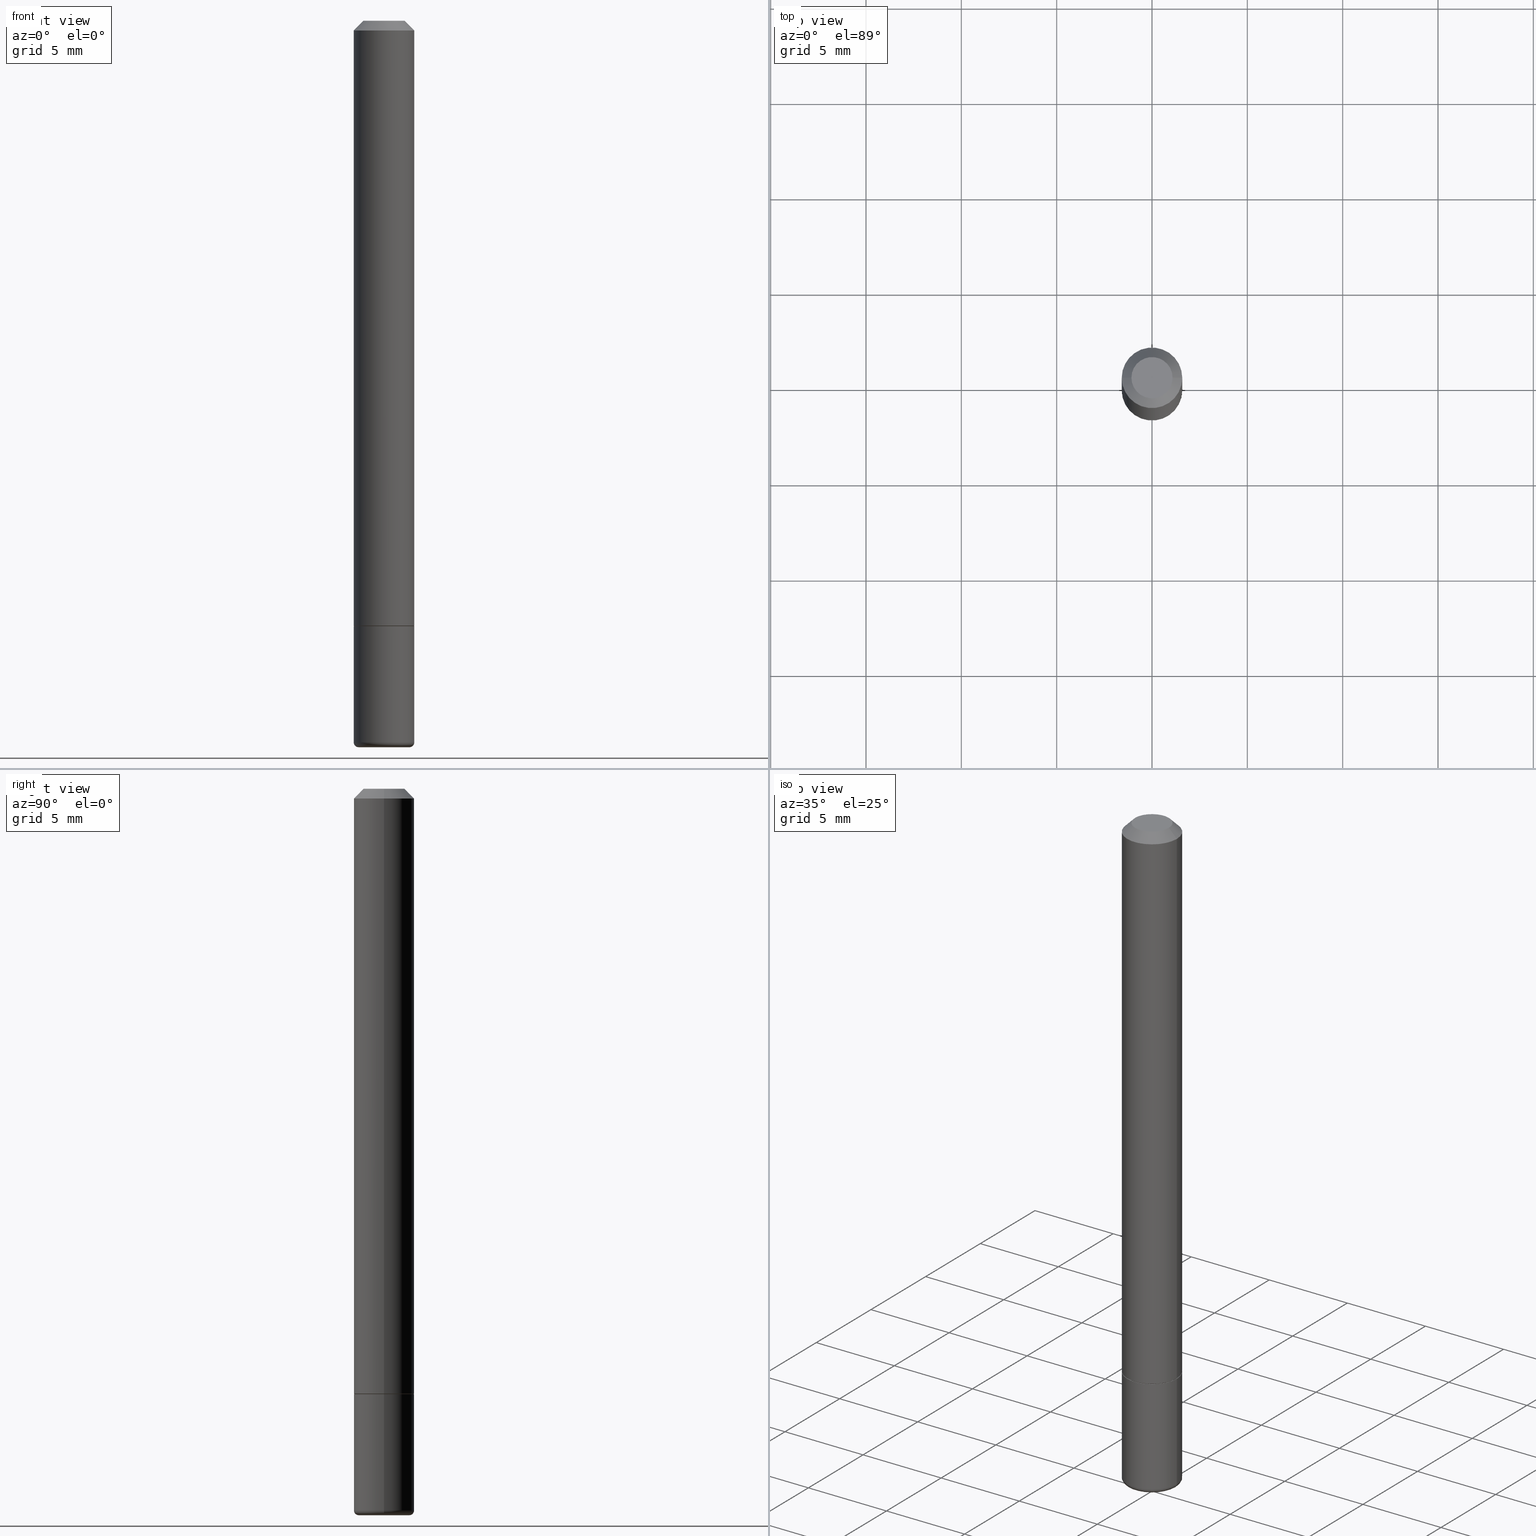
[diagram: canonical four-view strip — front | top / right | iso, engineering-drawing reading convention]
A machine part, canonical four-view strip (front | top / right | iso — engineering-drawing reading convention). The complete STEP part file that produces these views, byte-faithful:
ISO-10303-21;
HEADER;
FILE_DESCRIPTION (( 'STEP AP203' ),
    '1' );
FILE_NAME ('32606.STEP',
    '2022-04-26T19:39:46',
    ( '' ),
    ( '' ),
    'SwSTEP 2.0',
    'SolidWorks 2022',
    '' );
FILE_SCHEMA (( 'CONFIG_CONTROL_DESIGN' ));
ENDSEC;

DATA;
#1 = ADVANCED_FACE ( 'NONE', ( #101 ), #318, .T. ) ;
#2 = LINE ( 'NONE', #68, #196 ) ;
#3 = PLANE ( 'NONE',  #114 ) ;
#4 = DIRECTION ( 'NONE',  ( -2.445468806185136597E-29, 3.491481338843145583E-15, 1.000000000000000000 ) ) ;
#5 = VECTOR ( 'NONE', #238, 39.37007874015748143 ) ;
#6 = CARTESIAN_POINT ( 'NONE',  ( 3.643748521215853910E-29, -5.202307194876288105E-15, -1.490000000000000213 ) ) ;
#7 = CC_DESIGN_PERSON_AND_ORGANIZATION_ASSIGNMENT ( #294, #215, ( #150 ) ) ;
#8 = CARTESIAN_POINT ( 'NONE',  ( 3.056836007731421306E-29, -4.364351673553932471E-15, -1.250000000000000000 ) ) ;
#9 = CARTESIAN_POINT ( 'NONE',  ( 4.364351673554222871E-16, 0.06249999999999565625, -1.250000000000000222 ) ) ;
#10 = DIRECTION ( 'NONE',  ( -2.445468806185136597E-29, 3.491481338843145583E-15, 1.000000000000000000 ) ) ;
#11 = ORIENTED_EDGE ( 'NONE', *, *, #371, .T. ) ;
#12 = DATE_AND_TIME ( #314, #227 ) ;
#13 = AXIS2_PLACEMENT_3D ( 'NONE', #45, #40, #234 ) ;
#14 = DIRECTION ( 'NONE',  ( -2.445468806185136597E-29, 3.491481338843145583E-15, 1.000000000000000000 ) ) ;
#15 = VERTEX_POINT ( 'NONE', #411 ) ;
#16 = AXIS2_PLACEMENT_3D ( 'NONE', #85, #352, #354 ) ;
#17 = COORDINATED_UNIVERSAL_TIME_OFFSET ( 5, 0, .BEHIND. ) ;
#18 = EDGE_CURVE ( 'NONE', #395, #50, #361, .T. ) ;
#19 = DIRECTION ( 'NONE',  ( 1.000000000000000000, -6.982962677686267499E-15, 4.876176775795935793E-29 ) ) ;
#20 = ORIENTED_EDGE ( 'NONE', *, *, #141, .F. ) ;
#21 = CC_DESIGN_PERSON_AND_ORGANIZATION_ASSIGNMENT ( #180, #24, ( #325 ) ) ;
#22 = CARTESIAN_POINT ( 'NONE',  ( -0.06150000000000001299, -3.927367891061469286E-15, -1.249999999999999778 ) ) ;
#23 = ORIENTED_EDGE ( 'NONE', *, *, #429, .T. ) ;
#24 = PERSON_AND_ORGANIZATION_ROLE ( 'design_owner' ) ;
#25 = AXIS2_PLACEMENT_3D ( 'NONE', #367, #276, #208 ) ;
#26 = AXIS2_PLACEMENT_3D ( 'NONE', #181, #320, #19 ) ;
#27 = EDGE_CURVE ( 'NONE', #253, #313, #28, .T. ) ;
#28 = CIRCLE ( 'NONE', #126, 0.05232547593562723171 ) ;
#29 = EDGE_CURVE ( 'NONE', #313, #253, #434, .T. ) ;
#30 = UNCERTAINTY_MEASURE_WITH_UNIT (LENGTH_MEASURE( 1.000000000000000082E-05 ), #430, 'distance_accuracy_value', 'NONE');
#31 = MANIFOLD_SOLID_BREP ( 'Body-Move/Copy2[1]', #139 ) ;
#32 = EDGE_LOOP ( 'NONE', ( #249, #217, #117 ) ) ;
#33 = ORIENTED_EDGE ( 'NONE', *, *, #343, .T. ) ;
#34 = AXIS2_PLACEMENT_3D ( 'NONE', #379, #80, #386 ) ;
#35 = LINE ( 'NONE', #104, #397 ) ;
#36 = VECTOR ( 'NONE', #46, 39.37007874015748143 ) ;
#37 = ORIENTED_EDGE ( 'NONE', *, *, #18, .T. ) ;
#38 = CARTESIAN_POINT ( 'NONE',  ( 4.890937612370288923E-31, -6.982962677686312563E-17, -0.02000000000000006287 ) ) ;
#39 = CARTESIAN_POINT ( 'NONE',  ( 0.06249999999999993755, -4.364351673553912750E-16, 3.047610484872456718E-30 ) ) ;
#40 = DIRECTION ( 'NONE',  ( 7.105427357601001859E-15, 1.000000000000000000, -3.491481338843145583E-15 ) ) ;
#41 = CARTESIAN_POINT ( 'NONE',  ( 3.668199484710263962E-29, -5.237216690569524575E-15, -1.499998476951563742 ) ) ;
#42 = DIRECTION ( 'NONE',  ( -2.445468806185136597E-29, 3.491481338843145583E-15, 1.000000000000000000 ) ) ;
#43 = DIRECTION ( 'NONE',  ( 1.000000000000000000, -6.982962677686267499E-15, 4.876176775795935793E-29 ) ) ;
#44 = AXIS2_PLACEMENT_3D ( 'NONE', #6, #311, #210 ) ;
#45 = CARTESIAN_POINT ( 'NONE',  ( -0.05250000000000005357, -4.829272258602234782E-15, -1.490000000000000213 ) ) ;
#46 = DIRECTION ( 'NONE',  ( -0.7071067811866441621, 7.493145998870704414E-15, 0.7071067811864508723 ) ) ;
#47 = ORIENTED_EDGE ( 'NONE', *, *, #76, .F. ) ;
#48 = COORDINATED_UNIVERSAL_TIME_OFFSET ( 5, 0, .BEHIND. ) ;
#49 = FACE_OUTER_BOUND ( 'NONE', #400, .T. ) ;
#50 = VERTEX_POINT ( 'NONE', #209 ) ;
#51 = AXIS2_PLACEMENT_3D ( 'NONE', #372, #440, #268 ) ;
#52 = CARTESIAN_POINT ( 'NONE',  ( 0.04249999999999995448, -3.950909582714366952E-16, -3.841661241090128254E-17 ) ) ;
#53 = VERTEX_POINT ( 'NONE', #173 ) ;
#54 = LOCAL_TIME ( 15, 39, 46.00000000000000000, #291 ) ;
#55 = EDGE_CURVE ( 'NONE', #53, #198, #271, .T. ) ;
#56 = APPLICATION_PROTOCOL_DEFINITION ( 'international standard', 'config_control_design', 1994, #115 ) ;
#57 = CARTESIAN_POINT ( 'NONE',  ( 0.06150000000000001299, -4.793803878231636549E-15, -1.249999999999999778 ) ) ;
#58 = ORIENTED_EDGE ( 'NONE', *, *, #128, .T. ) ;
#59 = PERSON_AND_ORGANIZATION ( #432, #166 ) ;
#60 = CC_DESIGN_PERSON_AND_ORGANIZATION_ASSIGNMENT ( #59, #218, ( #381 ) ) ;
#61 = AXIS2_PLACEMENT_3D ( 'NONE', #310, #377, #43 ) ;
#62 = LOCAL_TIME ( 15, 39, 46.00000000000000000, #424 ) ;
#63 = EDGE_CURVE ( 'NONE', #366, #313, #278, .T. ) ;
#64 = EDGE_CURVE ( 'NONE', #15, #426, #111, .T. ) ;
#65 = AXIS2_PLACEMENT_3D ( 'NONE', #236, #75, #365 ) ;
#66 = VERTEX_POINT ( 'NONE', #240 ) ;
#67 = ORIENTED_EDGE ( 'NONE', *, *, #141, .T. ) ;
#68 = CARTESIAN_POINT ( 'NONE',  ( -0.06249999999999993755, 4.440892098500621724E-16, -3.074334431409313311E-30 ) ) ;
#69 = FACE_OUTER_BOUND ( 'NONE', #229, .T. ) ;
#70 = CIRCLE ( 'NONE', #13, 0.009999999999999807654 ) ;
#71 = DIRECTION ( 'NONE',  ( -2.445468806185136597E-29, 3.491481338843145583E-15, 1.000000000000000000 ) ) ;
#72 = FACE_OUTER_BOUND ( 'NONE', #156, .T. ) ;
#73 = CARTESIAN_POINT ( 'NONE',  ( 0.05250000000000005357, -5.568912735454817265E-15, -1.490000000000000213 ) ) ;
#74 = FACE_OUTER_BOUND ( 'NONE', #419, .T. ) ;
#75 = DIRECTION ( 'NONE',  ( -2.445468806185136597E-29, 3.491481338843145583E-15, 1.000000000000000000 ) ) ;
#76 = EDGE_CURVE ( 'NONE', #15, #66, #401, .T. ) ;
#77 = CARTESIAN_POINT ( 'NONE',  ( 3.665965929030929222E-29, -5.234027765013026441E-15, -1.499085132371708262 ) ) ;
#78 = DIRECTION ( 'NONE',  ( -6.982962677686266711E-15, -1.000000000000000000, 3.491481338843145583E-15 ) ) ;
#79 = AXIS2_PLACEMENT_3D ( 'NONE', #190, #323, #178 ) ;
#80 = DIRECTION ( 'NONE',  ( -2.445468806185136597E-29, 3.491481338843145583E-15, 1.000000000000000000 ) ) ;
#81 = VERTEX_POINT ( 'NONE', #335 ) ;
#82 = APPROVAL_STATUS ( 'not_yet_approved' ) ;
#83 = LINE ( 'NONE', #22, #36 ) ;
#84 = EDGE_LOOP ( 'NONE', ( #191, #438, #182, #336 ) ) ;
#85 = CARTESIAN_POINT ( 'NONE',  ( 3.054390538925235704E-29, -4.360860192215088675E-15, -1.248999999999999888 ) ) ;
#86 = ORIENTED_EDGE ( 'NONE', *, *, #228, .F. ) ;
#87 = MECHANICAL_CONTEXT ( 'NONE', #200, 'mechanical' ) ;
#88 = TOROIDAL_SURFACE ( 'NONE', #44, 0.05250000000000005357, 0.009999999999999805919 ) ;
#89 =( LENGTH_UNIT ( ) NAMED_UNIT ( * ) SI_UNIT ( $, .METRE. ) );
#90 = EDGE_LOOP ( 'NONE', ( #37, #152, #269, #168 ) ) ;
#91 = PERSON_AND_ORGANIZATION ( #432, #166 ) ;
#92 = CC_DESIGN_SECURITY_CLASSIFICATION ( #150, ( #381 ) ) ;
#93 = ORIENTED_EDGE ( 'NONE', *, *, #107, .T. ) ;
#94 = PERSON_AND_ORGANIZATION ( #432, #166 ) ;
#95 = CIRCLE ( 'NONE', #184, 0.009999999999999807654 ) ;
#96 = ADVANCED_FACE ( 'NONE', ( #134 ), #275, .T. ) ;
#97 = ORIENTED_EDGE ( 'NONE', *, *, #128, .F. ) ;
#98 = AXIS2_PLACEMENT_3D ( 'NONE', #368, #140, #176 ) ;
#99 = DIRECTION ( 'NONE',  ( 1.000000000000000000, -6.982962677686268288E-15, 0.000000000000000000 ) ) ;
#100 = DIRECTION ( 'NONE',  ( -2.445468806185136597E-29, 3.491481338843145583E-15, 1.000000000000000000 ) ) ;
#101 = FACE_OUTER_BOUND ( 'NONE', #281, .T. ) ;
#102 = CARTESIAN_POINT ( 'NONE',  ( -0.06250000000000002776, -4.339240224365047278E-15, -1.250000000000000000 ) ) ;
#103 = VECTOR ( 'NONE', #339, 39.37007874015748143 ) ;
#104 = CARTESIAN_POINT ( 'NONE',  ( -0.06249999999999995143, 3.666055405785281740E-16, -0.02000000000000006287 ) ) ;
#105 = CIRCLE ( 'NONE', #185, 0.06250000000000008327 ) ;
#106 = CARTESIAN_POINT ( 'NONE',  ( 3.056836007731420185E-29, -4.364351673553931682E-15, -1.249999999999999778 ) ) ;
#107 = EDGE_CURVE ( 'NONE', #253, #15, #95, .T. ) ;
#108 = DIRECTION ( 'NONE',  ( -2.445468806185136597E-29, 3.491481338843145583E-15, 1.000000000000000000 ) ) ;
#109 = CARTESIAN_POINT ( 'NONE',  ( 4.890937612370288923E-31, -6.982962677686312563E-17, -0.02000000000000006287 ) ) ;
#110 = EDGE_CURVE ( 'NONE', #380, #198, #35, .T. ) ;
#111 = LINE ( 'NONE', #39, #5 ) ;
#112 = DIRECTION ( 'NONE',  ( 2.438088387897960049E-29, -3.491481338843145188E-15, -1.000000000000000000 ) ) ;
#113 = CARTESIAN_POINT ( 'NONE',  ( 0.000000000000000000, 0.000000000000000000, 0.000000000000000000 ) ) ;
#114 = AXIS2_PLACEMENT_3D ( 'NONE', #213, #348, #169 ) ;
#115 = APPLICATION_CONTEXT ( 'configuration controlled 3d designs of mechanical parts and assemblies' ) ;
#116 = CARTESIAN_POINT ( 'NONE',  ( 3.056836007731421306E-29, -4.364351673553932471E-15, -1.250000000000000000 ) ) ;
#117 = ORIENTED_EDGE ( 'NONE', *, *, #27, .F. ) ;
#118 = LINE ( 'NONE', #57, #161 ) ;
#119 = ORIENTED_EDGE ( 'NONE', *, *, #64, .T. ) ;
#120 = ORIENTED_EDGE ( 'NONE', *, *, #415, .T. ) ;
#121 = APPROVAL_DATE_TIME ( #192, #223 ) ;
#122 = AXIS2_PLACEMENT_3D ( 'NONE', #171, #42, #164 ) ;
#123 = CARTESIAN_POINT ( 'NONE',  ( 0.000000000000000000, 0.000000000000000000, 0.000000000000000000 ) ) ;
#124 = ORIENTED_EDGE ( 'NONE', *, *, #29, .F. ) ;
#125 = EDGE_CURVE ( 'NONE', #390, #380, #159, .T. ) ;
#126 = AXIS2_PLACEMENT_3D ( 'NONE', #41, #199, #375 ) ;
#127 = CC_DESIGN_APPROVAL ( #274, ( #150 ) ) ;
#128 = EDGE_CURVE ( 'NONE', #66, #214, #2, .T. ) ;
#129 = ORIENTED_EDGE ( 'NONE', *, *, #63, .F. ) ;
#130 = ORIENTED_EDGE ( 'NONE', *, *, #359, .F. ) ;
#131 = AXIS2_PLACEMENT_3D ( 'NONE', #142, #301, #412 ) ;
#132 = CIRCLE ( 'NONE', #203, 0.06250000000000001388 ) ;
#133 = DIRECTION ( 'NONE',  ( 2.445468806185136597E-29, -3.491481338843145583E-15, -1.000000000000000000 ) ) ;
#134 = FACE_OUTER_BOUND ( 'NONE', #246, .T. ) ;
#135 = FACE_OUTER_BOUND ( 'NONE', #266, .T. ) ;
#136 = DIRECTION ( 'NONE',  ( 1.000000000000000000, -6.982962677686268288E-15, 0.000000000000000000 ) ) ;
#137 = ADVANCED_FACE ( 'NONE', ( #167 ), #302, .F. ) ;
#138 = DIRECTION ( 'NONE',  ( -2.445468806185136597E-29, 3.491481338843145583E-15, 1.000000000000000000 ) ) ;
#139 = CLOSED_SHELL ( 'NONE', ( #96, #197, #288, #251, #296, #427, #189 ) ) ;
#140 = DIRECTION ( 'NONE',  ( -2.445468806185136597E-29, 3.491481338843145583E-15, 1.000000000000000000 ) ) ;
#141 = EDGE_CURVE ( 'NONE', #66, #15, #337, .T. ) ;
#142 = CARTESIAN_POINT ( 'NONE',  ( 4.890937612370288923E-31, -6.982962677686312563E-17, -0.02000000000000006287 ) ) ;
#143 = DIRECTION ( 'NONE',  ( 1.000000000000000000, -6.982962677686273021E-15, 0.000000000000000000 ) ) ;
#144 = DIRECTION ( 'NONE',  ( 0.9998476951563914916, -6.920387862090534269E-15, -0.01745240643726872487 ) ) ;
#145 = APPROVAL_STATUS ( 'not_yet_approved' ) ;
#146 = CARTESIAN_POINT ( 'NONE',  ( 0.000000000000000000, 0.000000000000000000, 0.000000000000000000 ) ) ;
#147 = ORIENTED_EDGE ( 'NONE', *, *, #429, .F. ) ;
#148 = APPROVAL_DATE_TIME ( #12, #274 ) ;
#149 = CONICAL_SURFACE ( 'NONE', #175, 0.06249999999999995143, 0.7853981633974473908 ) ;
#150 = SECURITY_CLASSIFICATION ( '', '', #326 ) ;
#151 = CARTESIAN_POINT ( 'NONE',  ( -0.04249999999999995448, 3.316907271900970672E-16, -3.841661241090589861E-17 ) ) ;
#152 = ORIENTED_EDGE ( 'NONE', *, *, #359, .T. ) ;
#153 = APPROVAL_ROLE ( '' ) ;
#154 = ORIENTED_EDGE ( 'NONE', *, *, #55, .T. ) ;
#155 = DIRECTION ( 'NONE',  ( -2.445468806185136877E-29, 3.491481338843145188E-15, 1.000000000000000000 ) ) ;
#156 = EDGE_LOOP ( 'NONE', ( #264, #357, #431, #224 ) ) ;
#157 = EDGE_CURVE ( 'NONE', #214, #426, #402, .T. ) ;
#158 = COORDINATED_UNIVERSAL_TIME_OFFSET ( 5, 0, .BEHIND. ) ;
#159 = CIRCLE ( 'NONE', #65, 0.04249999999999995448 ) ;
#160 = AXIS2_PLACEMENT_3D ( 'NONE', #38, #272, #410 ) ;
#161 = VECTOR ( 'NONE', #418, 39.37007874015748143 ) ;
#162 = ADVANCED_BREP_SHAPE_REPRESENTATION ( '32606', ( #31, #331, #300 ), #435 ) ;
#163 = VERTEX_POINT ( 'NONE', #174 ) ;
#164 = DIRECTION ( 'NONE',  ( 1.000000000000000000, -6.982962677686262766E-15, 4.883557194083111219E-29 ) ) ;
#165 = AXIS2_PLACEMENT_3D ( 'NONE', #201, #138, #205 ) ;
#166 = ORGANIZATION ( 'UNSPECIFIED', 'UNSPECIFIED', '' ) ;
#167 = FACE_OUTER_BOUND ( 'NONE', #262, .T. ) ;
#168 = ORIENTED_EDGE ( 'NONE', *, *, #343, .F. ) ;
#169 = DIRECTION ( 'NONE',  ( -1.000000000000000000, 6.982962677686265922E-15, -4.876176775795935793E-29 ) ) ;
#170 = DIRECTION ( 'NONE',  ( 1.000000000000000000, -6.982962677686263555E-15, 0.000000000000000000 ) ) ;
#171 = CARTESIAN_POINT ( 'NONE',  ( 3.643748521215853910E-29, -5.202307194876288105E-15, -1.490000000000000213 ) ) ;
#172 = ADVANCED_FACE ( 'NONE', ( #69 ), #3, .F. ) ;
#173 = CARTESIAN_POINT ( 'NONE',  ( -0.06250000000000008327, -1.771255699645910610E-15, -1.248999999999999888 ) ) ;
#174 = CARTESIAN_POINT ( 'NONE',  ( 0.06249999999999995143, -4.986107516375835278E-16, -0.02000000000000006287 ) ) ;
#175 = AXIS2_PLACEMENT_3D ( 'NONE', #109, #133, #341 ) ;
#176 = DIRECTION ( 'NONE',  ( 1.000000000000000000, -6.982962677686261977E-15, 0.000000000000000000 ) ) ;
#177 = DIRECTION ( 'NONE',  ( 2.445468806185136597E-29, -3.491481338843145583E-15, -1.000000000000000000 ) ) ;
#178 = DIRECTION ( 'NONE',  ( 1.000000000000000000, -6.982962677686268288E-15, 0.000000000000000000 ) ) ;
#179 = ORIENTED_EDGE ( 'NONE', *, *, #125, .T. ) ;
#180 = PERSON_AND_ORGANIZATION ( #432, #166 ) ;
#181 = CARTESIAN_POINT ( 'NONE',  ( 0.000000000000000000, 0.000000000000000000, 0.000000000000000000 ) ) ;
#182 = ORIENTED_EDGE ( 'NONE', *, *, #110, .T. ) ;
#183 = PERSON_AND_ORGANIZATION ( #432, #166 ) ;
#184 = AXIS2_PLACEMENT_3D ( 'NONE', #73, #78, #143 ) ;
#185 = AXIS2_PLACEMENT_3D ( 'NONE', #186, #289, #312 ) ;
#186 = CARTESIAN_POINT ( 'NONE',  ( 3.054390538925235704E-29, -4.360860192215088675E-15, -1.248999999999999888 ) ) ;
#187 = ORIENTED_EDGE ( 'NONE', *, *, #228, .T. ) ;
#188 = PERSON_AND_ORGANIZATION ( #432, #166 ) ;
#189 = ADVANCED_FACE ( 'NONE', ( #270 ), #439, .F. ) ;
#190 = CARTESIAN_POINT ( 'NONE',  ( 3.056836007731420185E-29, -4.364351673553931682E-15, -1.249999999999999778 ) ) ;
#191 = ORIENTED_EDGE ( 'NONE', *, *, #259, .F. ) ;
#192 = DATE_AND_TIME ( #243, #319 ) ;
#193 = CC_DESIGN_DATE_AND_TIME_ASSIGNMENT ( #254, #421, ( #374 ) ) ;
#194 = PERSON_AND_ORGANIZATION_ROLE ( 'creator' ) ;
#195 = APPROVAL_PERSON_ORGANIZATION ( #94, #263, #153 ) ;
#196 = VECTOR ( 'NONE', #413, 39.37007874015748143 ) ;
#197 = ADVANCED_FACE ( 'NONE', ( #135 ), #212, .T. ) ;
#198 = VERTEX_POINT ( 'NONE', #404 ) ;
#199 = DIRECTION ( 'NONE',  ( -2.445468806185136597E-29, 3.491481338843145583E-15, 1.000000000000000000 ) ) ;
#200 = APPLICATION_CONTEXT ( 'configuration controlled 3d designs of mechanical parts and assemblies' ) ;
#201 = CARTESIAN_POINT ( 'NONE',  ( 9.394662729016977403E-46, -1.341308853342402453E-31, -3.841661241090370459E-17 ) ) ;
#202 = AXIS2_PLACEMENT_3D ( 'NONE', #347, #207, #405 ) ;
#203 = AXIS2_PLACEMENT_3D ( 'NONE', #116, #10, #425 ) ;
#204 = CARTESIAN_POINT ( 'NONE',  ( -0.06250000000000001388, 4.440892098500627148E-16, -3.074334431409317165E-30 ) ) ;
#205 = DIRECTION ( 'NONE',  ( 1.000000000000000000, -6.982962677686267499E-15, 4.870577812114089772E-29 ) ) ;
#206 = ADVANCED_FACE ( 'NONE', ( #303 ), #149, .T. ) ;
#207 = DIRECTION ( 'NONE',  ( -2.445468806185136597E-29, 3.491481338843145583E-15, 1.000000000000000000 ) ) ;
#208 = DIRECTION ( 'NONE',  ( -1.000000000000000000, 6.982962677686266711E-15, 0.000000000000000000 ) ) ;
#209 = CARTESIAN_POINT ( 'NONE',  ( -0.06150000000000001299, -3.922069436713247672E-15, -1.249999999999999778 ) ) ;
#210 = DIRECTION ( 'NONE',  ( 1.000000000000000000, -6.982962677686262766E-15, 4.883557194083111219E-29 ) ) ;
#211 = CONICAL_SURFACE ( 'NONE', #409, 0.06150000000000001299, 0.7853981633975849475 ) ;
#212 = TOROIDAL_SURFACE ( 'NONE', #122, 0.05250000000000005357, 0.009999999999999805919 ) ;
#213 = CARTESIAN_POINT ( 'NONE',  ( 2.967759138016660098E-16, 0.04249999999999995448, -1.675962631062853934E-16 ) ) ;
#214 = VERTEX_POINT ( 'NONE', #102 ) ;
#215 = PERSON_AND_ORGANIZATION_ROLE ( 'classification_officer' ) ;
#216 = CARTESIAN_POINT ( 'NONE',  ( 0.06250000000000001388, -4.364351673553918173E-16, 3.047610484872460571E-30 ) ) ;
#217 = ORIENTED_EDGE ( 'NONE', *, *, #63, .T. ) ;
#218 = PERSON_AND_ORGANIZATION_ROLE ( 'design_supplier' ) ;
#219 = DIRECTION ( 'NONE',  ( 1.000000000000000000, -6.982962677686267499E-15, 4.876176775795935793E-29 ) ) ;
#220 = ORIENTED_EDGE ( 'NONE', *, *, #297, .F. ) ;
#221 = EDGE_CURVE ( 'NONE', #380, #390, #255, .T. ) ;
#222 = ORIENTED_EDGE ( 'NONE', *, *, #27, .T. ) ;
#223 = APPROVAL ( #322, 'UNSPECIFIED' ) ;
#224 = ORIENTED_EDGE ( 'NONE', *, *, #110, .F. ) ;
#225 = CALENDAR_DATE ( 2022, 26, 4 ) ;
#226 = CIRCLE ( 'NONE', #34, 0.06249999999999995143 ) ;
#227 = LOCAL_TIME ( 15, 39, 46.00000000000000000, #48 ) ;
#228 = EDGE_CURVE ( 'NONE', #313, #66, #70, .T. ) ;
#229 = EDGE_LOOP ( 'NONE', ( #316, #179 ) ) ;
#230 = DIRECTION ( 'NONE',  ( -0.9998476951563914916, 6.920964387254087554E-15, -0.01745240643726872487 ) ) ;
#231 = FACE_OUTER_BOUND ( 'NONE', #32, .T. ) ;
#232 = CARTESIAN_POINT ( 'NONE',  ( 3.056836007731420185E-29, -4.364351673553931682E-15, -1.249999999999999778 ) ) ;
#233 = ORIENTED_EDGE ( 'NONE', *, *, #408, .F. ) ;
#234 = DIRECTION ( 'NONE',  ( -1.000000000000000000, 7.105427357600966360E-15, 0.000000000000000000 ) ) ;
#235 = VECTOR ( 'NONE', #155, 39.37007874015748143 ) ;
#236 = CARTESIAN_POINT ( 'NONE',  ( 9.394662729016977403E-46, -1.341308853342402453E-31, -3.841661241090370459E-17 ) ) ;
#237 = LINE ( 'NONE', #370, #103 ) ;
#238 = DIRECTION ( 'NONE',  ( -2.445468806185136877E-29, 3.491481338843145188E-15, 1.000000000000000000 ) ) ;
#239 = LINE ( 'NONE', #77, #378 ) ;
#240 = CARTESIAN_POINT ( 'NONE',  ( -0.06249999999999986122, -4.758217985026226278E-15, -1.490000000000000213 ) ) ;
#241 = FACE_OUTER_BOUND ( 'NONE', #90, .T. ) ;
#242 = ORIENTED_EDGE ( 'NONE', *, *, #393, .T. ) ;
#243 = CALENDAR_DATE ( 2022, 26, 4 ) ;
#244 = VECTOR ( 'NONE', #230, 39.37007874015748143 ) ;
#245 = LINE ( 'NONE', #216, #235 ) ;
#246 = EDGE_LOOP ( 'NONE', ( #350, #58, #387, #353 ) ) ;
#247 = DIRECTION ( 'NONE',  ( 1.000000000000000000, 0.000000000000000000, 0.000000000000000000 ) ) ;
#248 = DIRECTION ( 'NONE',  ( 1.000000000000000000, -6.982962677686267499E-15, 4.876176775795935793E-29 ) ) ;
#249 = ORIENTED_EDGE ( 'NONE', *, *, #307, .F. ) ;
#250 = CALENDAR_DATE ( 2022, 26, 4 ) ;
#251 = ADVANCED_FACE ( 'NONE', ( #231 ), #356, .F. ) ;
#252 = CYLINDRICAL_SURFACE ( 'NONE', #295, 0.06250000000000001388 ) ;
#253 = VERTEX_POINT ( 'NONE', #416 ) ;
#254 = DATE_AND_TIME ( #250, #54 ) ;
#255 = CIRCLE ( 'NONE', #165, 0.04249999999999995448 ) ;
#256 = FACE_OUTER_BOUND ( 'NONE', #324, .T. ) ;
#257 = ORIENTED_EDGE ( 'NONE', *, *, #408, .T. ) ;
#258 =( NAMED_UNIT ( * ) PLANE_ANGLE_UNIT ( ) SI_UNIT ( $, .RADIAN. ) );
#259 = EDGE_CURVE ( 'NONE', #390, #163, #237, .T. ) ;
#260 = AXIS2_PLACEMENT_3D ( 'NONE', #146, #280, #248 ) ;
#261 = ADVANCED_FACE ( 'NONE', ( #72 ), #273, .T. ) ;
#262 = EDGE_LOOP ( 'NONE', ( #384, #403 ) ) ;
#263 = APPROVAL ( #82, 'UNSPECIFIED' ) ;
#264 = ORIENTED_EDGE ( 'NONE', *, *, #125, .F. ) ;
#265 = CIRCLE ( 'NONE', #131, 0.06249999999999995143 ) ;
#266 = EDGE_LOOP ( 'NONE', ( #222, #187, #47, #406 ) ) ;
#267 = DIRECTION ( 'NONE',  ( 1.000000000000000000, -6.982962677686268288E-15, 0.000000000000000000 ) ) ;
#268 = DIRECTION ( 'NONE',  ( 1.000000000000000000, -6.982962677686265922E-15, 4.876176775795935793E-29 ) ) ;
#269 = ORIENTED_EDGE ( 'NONE', *, *, #371, .F. ) ;
#270 = FACE_OUTER_BOUND ( 'NONE', #355, .T. ) ;
#271 = LINE ( 'NONE', #204, #369 ) ;
#272 = DIRECTION ( 'NONE',  ( 2.445468806185136597E-29, -3.491481338843145583E-15, -1.000000000000000000 ) ) ;
#273 = CONICAL_SURFACE ( 'NONE', #160, 0.06249999999999995143, 0.7853981633974473908 ) ;
#274 = APPROVAL ( #145, 'UNSPECIFIED' ) ;
#275 = CYLINDRICAL_SURFACE ( 'NONE', #61, 0.06249999999999993755 ) ;
#276 = DIRECTION ( 'NONE',  ( 2.445468806185136597E-29, -3.491481338843145583E-15, -1.000000000000000000 ) ) ;
#277 = ADVANCED_FACE ( 'NONE', ( #241 ), #211, .T. ) ;
#278 = LINE ( 'NONE', #407, #244 ) ;
#279 = CARTESIAN_POINT ( 'NONE',  ( -0.05232547593562727334, -4.871829845018868914E-15, -1.499998476951563742 ) ) ;
#280 = DIRECTION ( 'NONE',  ( -2.445468806185136597E-29, 3.491481338843145583E-15, 1.000000000000000000 ) ) ;
#281 = EDGE_LOOP ( 'NONE', ( #130, #242, #33, #233 ) ) ;
#282 = SHAPE_DEFINITION_REPRESENTATION ( #309, #162 ) ;
#283 = AXIS2_PLACEMENT_3D ( 'NONE', #9, #112, #305 ) ;
#284 = LOCAL_TIME ( 15, 39, 46.00000000000000000, #158 ) ;
#285 = CARTESIAN_POINT ( 'NONE',  ( 0.06150000000000001299, -4.793803878231636549E-15, -1.249999999999999778 ) ) ;
#286 = ORIENTED_EDGE ( 'NONE', *, *, #55, .F. ) ;
#287 = DATE_AND_TIME ( #385, #284 ) ;
#288 = ADVANCED_FACE ( 'NONE', ( #74 ), #334, .F. ) ;
#289 = DIRECTION ( 'NONE',  ( -2.445468806185136597E-29, 3.491481338843145583E-15, 1.000000000000000000 ) ) ;
#290 = ORIENTED_EDGE ( 'NONE', *, *, #29, .T. ) ;
#291 = COORDINATED_UNIVERSAL_TIME_OFFSET ( 5, 0, .BEHIND. ) ;
#292 = LENGTH_MEASURE_WITH_UNIT ( LENGTH_MEASURE( 0.02539999999999999897 ), #89 );
#293 = EDGE_LOOP ( 'NONE', ( #86, #290, #93, #20 ) ) ;
#294 = PERSON_AND_ORGANIZATION ( #432, #166 ) ;
#295 = AXIS2_PLACEMENT_3D ( 'NONE', #123, #14, #219 ) ;
#296 = ADVANCED_FACE ( 'NONE', ( #344 ), #88, .T. ) ;
#297 = EDGE_CURVE ( 'NONE', #163, #198, #265, .T. ) ;
#298 = ORIENTED_EDGE ( 'NONE', *, *, #307, .T. ) ;
#299 = AXIS2_PLACEMENT_3D ( 'NONE', #8, #100, #376 ) ;
#300 = AXIS2_PLACEMENT_3D ( 'NONE', #113, #388, #247 ) ;
#301 = DIRECTION ( 'NONE',  ( -2.445468806185136597E-29, 3.491481338843145583E-15, 1.000000000000000000 ) ) ;
#302 = PLANE ( 'NONE',  #51 ) ;
#303 = FACE_OUTER_BOUND ( 'NONE', #84, .T. ) ;
#304 = DIRECTION ( 'NONE',  ( -0.7071067811865469066, 2.468850131082250355E-15, -0.7071067811865481278 ) ) ;
#305 = DIRECTION ( 'NONE',  ( -1.000000000000000000, 6.982962677686265922E-15, -4.876176775795935793E-29 ) ) ;
#306 = CARTESIAN_POINT ( 'NONE',  ( 3.643748521215853910E-29, -5.202307194876288105E-15, -1.490000000000000213 ) ) ;
#307 = EDGE_CURVE ( 'NONE', #366, #253, #239, .T. ) ;
#308 = AXIS2_PLACEMENT_3D ( 'NONE', #232, #71, #99 ) ;
#309 = PRODUCT_DEFINITION_SHAPE ( 'NONE', 'NONE',  #374 ) ;
#310 = CARTESIAN_POINT ( 'NONE',  ( 0.000000000000000000, 0.000000000000000000, 0.000000000000000000 ) ) ;
#311 = DIRECTION ( 'NONE',  ( -2.445468806185136597E-29, 3.491481338843145583E-15, 1.000000000000000000 ) ) ;
#312 = DIRECTION ( 'NONE',  ( 1.000000000000000000, -6.982962677686261189E-15, 0.000000000000000000 ) ) ;
#313 = VERTEX_POINT ( 'NONE', #279 ) ;
#314 = CALENDAR_DATE ( 2022, 26, 4 ) ;
#315 = CARTESIAN_POINT ( 'NONE',  ( 0.06250000000000001388, -4.800786840909324141E-15, -1.250000000000000000 ) ) ;
#316 = ORIENTED_EDGE ( 'NONE', *, *, #221, .T. ) ;
#317 = APPLICATION_PROTOCOL_DEFINITION ( 'international standard', 'config_control_design', 1994, #200 ) ;
#318 = CONICAL_SURFACE ( 'NONE', #433, 0.06150000000000001299, 0.7853981633975849475 ) ;
#319 = LOCAL_TIME ( 15, 39, 46.00000000000000000, #17 ) ;
#320 = DIRECTION ( 'NONE',  ( -2.445468806185136597E-29, 3.491481338843145583E-15, 1.000000000000000000 ) ) ;
#321 = EDGE_LOOP ( 'NONE', ( #97, #67, #119, #364 ) ) ;
#322 = APPROVAL_STATUS ( 'not_yet_approved' ) ;
#323 = DIRECTION ( 'NONE',  ( -2.445468806185136597E-29, 3.491481338843145583E-15, 1.000000000000000000 ) ) ;
#324 = EDGE_LOOP ( 'NONE', ( #286, #257, #23, #441 ) ) ;
#325 = PRODUCT ( '32606', '32606', '', ( #87 ) ) ;
#326 = SECURITY_CLASSIFICATION_LEVEL ( 'unclassified' ) ;
#327 = CC_DESIGN_PERSON_AND_ORGANIZATION_ASSIGNMENT ( #91, #358, ( #381 ) ) ;
#328 = DATE_TIME_ROLE ( 'classification_date' ) ;
#329 = CLOSED_SHELL ( 'NONE', ( #277, #436, #261, #206, #363, #1, #137, #172 ) ) ;
#330 = CIRCLE ( 'NONE', #79, 0.06150000000000001299 ) ;
#331 = MANIFOLD_SOLID_BREP ( 'Body-Move/Copy2[2]', #329 ) ;
#332 = DIMENSIONAL_EXPONENTS ( 1.000000000000000000, 0.000000000000000000, 0.000000000000000000, 0.000000000000000000, 0.000000000000000000, 0.000000000000000000, 0.000000000000000000 ) ;
#333 = EDGE_CURVE ( 'NONE', #198, #163, #226, .T. ) ;
#334 = CONICAL_SURFACE ( 'NONE', #25, 2255.510300425511105, 1.553343034274968115 ) ;
#335 = CARTESIAN_POINT ( 'NONE',  ( 0.06250000000000008327, -4.797295359570480345E-15, -1.248999999999999888 ) ) ;
#336 = ORIENTED_EDGE ( 'NONE', *, *, #333, .T. ) ;
#337 = CIRCLE ( 'NONE', #202, 0.06249999999999986122 ) ;
#338 = CC_DESIGN_APPROVAL ( #223, ( #374 ) ) ;
#339 = DIRECTION ( 'NONE',  ( 0.7071067811865469066, -7.319954787623254468E-15, -0.7071067811865481278 ) ) ;
#340 = DIRECTION ( 'NONE',  ( -2.445468806185136877E-29, 3.491481338843145188E-15, 1.000000000000000000 ) ) ;
#341 = DIRECTION ( 'NONE',  ( -1.000000000000000000, 6.982962677686266711E-15, 0.000000000000000000 ) ) ;
#342 = CARTESIAN_POINT ( 'NONE',  ( 3.056836007731420185E-29, -4.364351673553931682E-15, -1.249999999999999778 ) ) ;
#343 = EDGE_CURVE ( 'NONE', #395, #81, #118, .T. ) ;
#344 = FACE_OUTER_BOUND ( 'NONE', #293, .T. ) ;
#345 = CC_DESIGN_PERSON_AND_ORGANIZATION_ASSIGNMENT ( #396, #194, ( #374 ) ) ;
#346 = DESIGN_CONTEXT ( 'detailed design', #115, 'design' ) ;
#347 = CARTESIAN_POINT ( 'NONE',  ( 3.643748521215853910E-29, -5.202307194876288105E-15, -1.490000000000000213 ) ) ;
#348 = DIRECTION ( 'NONE',  ( 2.438088387897960049E-29, -3.491481338843145188E-15, -1.000000000000000000 ) ) ;
#349 = CARTESIAN_POINT ( 'NONE',  ( 9.994426538513867199E-28, -1.426939229950581236E-13, -40.86916387252918526 ) ) ;
#350 = ORIENTED_EDGE ( 'NONE', *, *, #76, .T. ) ;
#351 = APPROVAL_ROLE ( '' ) ;
#352 = DIRECTION ( 'NONE',  ( -2.445468806185136597E-29, 3.491481338843145583E-15, 1.000000000000000000 ) ) ;
#353 = ORIENTED_EDGE ( 'NONE', *, *, #64, .F. ) ;
#354 = DIRECTION ( 'NONE',  ( 1.000000000000000000, -6.982962677686261189E-15, 0.000000000000000000 ) ) ;
#355 = EDGE_LOOP ( 'NONE', ( #120, #423 ) ) ;
#356 = CONICAL_SURFACE ( 'NONE', #417, 2255.510300425511105, 1.553343034274968115 ) ;
#357 = ORIENTED_EDGE ( 'NONE', *, *, #259, .T. ) ;
#358 = PERSON_AND_ORGANIZATION_ROLE ( 'creator' ) ;
#359 = EDGE_CURVE ( 'NONE', #50, #53, #83, .T. ) ;
#360 = DATE_AND_TIME ( #225, #62 ) ;
#361 = CIRCLE ( 'NONE', #308, 0.06150000000000001299 ) ;
#362 = APPROVAL_PERSON_ORGANIZATION ( #188, #223, #382 ) ;
#363 = ADVANCED_FACE ( 'NONE', ( #256 ), #252, .T. ) ;
#364 = ORIENTED_EDGE ( 'NONE', *, *, #157, .F. ) ;
#365 = DIRECTION ( 'NONE',  ( 1.000000000000000000, -6.982962677686267499E-15, 4.870577812114089772E-29 ) ) ;
#366 = VERTEX_POINT ( 'NONE', #394 ) ;
#367 = CARTESIAN_POINT ( 'NONE',  ( 9.994426538513867199E-28, -1.426939229950581236E-13, -40.86916387252918526 ) ) ;
#368 = CARTESIAN_POINT ( 'NONE',  ( 3.668199484710263962E-29, -5.237216690569524575E-15, -1.499998476951563742 ) ) ;
#369 = VECTOR ( 'NONE', #340, 39.37007874015748143 ) ;
#370 = CARTESIAN_POINT ( 'NONE',  ( 0.06249999999999995143, -4.986107516375835278E-16, -0.02000000000000006287 ) ) ;
#371 = EDGE_CURVE ( 'NONE', #81, #53, #398, .T. ) ;
#372 = CARTESIAN_POINT ( 'NONE',  ( 3.056836007731421306E-29, -4.364351673553932471E-15, -1.250000000000000000 ) ) ;
#373 = DIRECTION ( 'NONE',  ( -2.445468806185136597E-29, 3.491481338843145583E-15, 1.000000000000000000 ) ) ;
#374 = PRODUCT_DEFINITION ( 'UNKNOWN', '', #381, #346 ) ;
#375 = DIRECTION ( 'NONE',  ( 1.000000000000000000, -6.982962677686261977E-15, 0.000000000000000000 ) ) ;
#376 = DIRECTION ( 'NONE',  ( 1.000000000000000000, -6.982962677686269077E-15, 0.000000000000000000 ) ) ;
#377 = DIRECTION ( 'NONE',  ( -2.445468806185136597E-29, 3.491481338843145583E-15, 1.000000000000000000 ) ) ;
#378 = VECTOR ( 'NONE', #144, 39.37007874015748143 ) ;
#379 = CARTESIAN_POINT ( 'NONE',  ( 4.890937612370288923E-31, -6.982962677686312563E-17, -0.02000000000000006287 ) ) ;
#380 = VERTEX_POINT ( 'NONE', #151 ) ;
#381 = PRODUCT_DEFINITION_FORMATION_WITH_SPECIFIED_SOURCE ( 'ANY', '', #325, .NOT_KNOWN. ) ;
#382 = APPROVAL_ROLE ( '' ) ;
#383 = CYLINDRICAL_SURFACE ( 'NONE', #26, 0.06250000000000001388 ) ;
#384 = ORIENTED_EDGE ( 'NONE', *, *, #18, .F. ) ;
#385 = CALENDAR_DATE ( 2022, 26, 4 ) ;
#386 = DIRECTION ( 'NONE',  ( 1.000000000000000000, -6.982962677686266711E-15, 0.000000000000000000 ) ) ;
#387 = ORIENTED_EDGE ( 'NONE', *, *, #415, .F. ) ;
#388 = DIRECTION ( 'NONE',  ( 0.000000000000000000, 0.000000000000000000, 1.000000000000000000 ) ) ;
#389 = FACE_OUTER_BOUND ( 'NONE', #321, .T. ) ;
#390 = VERTEX_POINT ( 'NONE', #52 ) ;
#391 = APPROVAL_DATE_TIME ( #287, #263 ) ;
#392 = AXIS2_PLACEMENT_3D ( 'NONE', #306, #4, #170 ) ;
#393 = EDGE_CURVE ( 'NONE', #50, #395, #330, .T. ) ;
#394 = CARTESIAN_POINT ( 'NONE',  ( 3.665965929030929222E-29, -5.234027765013026441E-15, -1.499085132371708262 ) ) ;
#395 = VERTEX_POINT ( 'NONE', #285 ) ;
#396 = PERSON_AND_ORGANIZATION ( #432, #166 ) ;
#397 = VECTOR ( 'NONE', #304, 39.37007874015748143 ) ;
#398 = CIRCLE ( 'NONE', #16, 0.06250000000000008327 ) ;
#399 = PRODUCT_RELATED_PRODUCT_CATEGORY ( 'detail', '', ( #325 ) ) ;
#400 = EDGE_LOOP ( 'NONE', ( #11, #154, #220, #147 ) ) ;
#401 = CIRCLE ( 'NONE', #392, 0.06249999999999986122 ) ;
#402 = CIRCLE ( 'NONE', #299, 0.06250000000000001388 ) ;
#403 = ORIENTED_EDGE ( 'NONE', *, *, #393, .F. ) ;
#404 = CARTESIAN_POINT ( 'NONE',  ( -0.06249999999999995143, 3.666055405785281740E-16, -0.02000000000000006287 ) ) ;
#405 = DIRECTION ( 'NONE',  ( 1.000000000000000000, -6.982962677686263555E-15, 0.000000000000000000 ) ) ;
#406 = ORIENTED_EDGE ( 'NONE', *, *, #107, .F. ) ;
#407 = CARTESIAN_POINT ( 'NONE',  ( 3.665965929030929222E-29, -5.234027765013026441E-15, -1.499085132371708262 ) ) ;
#408 = EDGE_CURVE ( 'NONE', #53, #81, #105, .T. ) ;
#409 = AXIS2_PLACEMENT_3D ( 'NONE', #106, #373, #267 ) ;
#410 = DIRECTION ( 'NONE',  ( -1.000000000000000000, 6.982962677686266711E-15, 0.000000000000000000 ) ) ;
#411 = CARTESIAN_POINT ( 'NONE',  ( 0.06249999999999986122, -5.638742362231678197E-15, -1.490000000000000213 ) ) ;
#412 = DIRECTION ( 'NONE',  ( 1.000000000000000000, -6.982962677686266711E-15, 0.000000000000000000 ) ) ;
#413 = DIRECTION ( 'NONE',  ( -2.445468806185136877E-29, 3.491481338843145188E-15, 1.000000000000000000 ) ) ;
#414 = CC_DESIGN_DATE_AND_TIME_ASSIGNMENT ( #360, #328, ( #150 ) ) ;
#415 = EDGE_CURVE ( 'NONE', #426, #214, #132, .T. ) ;
#416 = CARTESIAN_POINT ( 'NONE',  ( 0.05232547593562727334, -5.596195513458338321E-15, -1.499998476951563742 ) ) ;
#417 = AXIS2_PLACEMENT_3D ( 'NONE', #349, #177, #442 ) ;
#418 = DIRECTION ( 'NONE',  ( 0.7071067811866441621, -2.468850131083269169E-15, 0.7071067811864508723 ) ) ;
#419 = EDGE_LOOP ( 'NONE', ( #129, #298, #124 ) ) ;
#420 = APPROVAL_PERSON_ORGANIZATION ( #183, #274, #351 ) ;
#421 = DATE_TIME_ROLE ( 'creation_date' ) ;
#422 = CYLINDRICAL_SURFACE ( 'NONE', #260, 0.06249999999999993755 ) ;
#423 = ORIENTED_EDGE ( 'NONE', *, *, #157, .T. ) ;
#424 = COORDINATED_UNIVERSAL_TIME_OFFSET ( 5, 0, .BEHIND. ) ;
#425 = DIRECTION ( 'NONE',  ( 1.000000000000000000, -6.982962677686269077E-15, 0.000000000000000000 ) ) ;
#426 = VERTEX_POINT ( 'NONE', #315 ) ;
#427 = ADVANCED_FACE ( 'NONE', ( #389 ), #422, .T. ) ;
#428 =( NAMED_UNIT ( * ) SI_UNIT ( $, .STERADIAN. ) SOLID_ANGLE_UNIT ( ) );
#429 = EDGE_CURVE ( 'NONE', #81, #163, #245, .T. ) ;
#430 =( CONVERSION_BASED_UNIT ( 'INCH', #292 ) LENGTH_UNIT ( ) NAMED_UNIT ( #332 ) );
#431 = ORIENTED_EDGE ( 'NONE', *, *, #297, .T. ) ;
#432 = PERSON ( 'UNSPECIFIED', 'UNSPECIFIED', 'UNSPECIFIED', ('UNSPECIFIED'), ('UNSPECIFIED'), ('UNSPECIFIED') ) ;
#433 = AXIS2_PLACEMENT_3D ( 'NONE', #342, #108, #136 ) ;
#434 = CIRCLE ( 'NONE', #98, 0.05232547593562723171 ) ;
#435 =( GEOMETRIC_REPRESENTATION_CONTEXT ( 3 ) GLOBAL_UNCERTAINTY_ASSIGNED_CONTEXT ( ( #30 ) ) GLOBAL_UNIT_ASSIGNED_CONTEXT ( ( #430, #258, #428 ) ) REPRESENTATION_CONTEXT ( 'NONE', 'WORKASPACE' ) );
#436 = ADVANCED_FACE ( 'NONE', ( #49 ), #383, .T. ) ;
#437 = CC_DESIGN_APPROVAL ( #263, ( #381 ) ) ;
#438 = ORIENTED_EDGE ( 'NONE', *, *, #221, .F. ) ;
#439 = PLANE ( 'NONE',  #283 ) ;
#440 = DIRECTION ( 'NONE',  ( -2.438088387897960049E-29, 3.491481338843145188E-15, 1.000000000000000000 ) ) ;
#441 = ORIENTED_EDGE ( 'NONE', *, *, #333, .F. ) ;
#442 = DIRECTION ( 'NONE',  ( -1.000000000000000000, 6.982962677686266711E-15, 0.000000000000000000 ) ) ;
ENDSEC;
END-ISO-10303-21;
